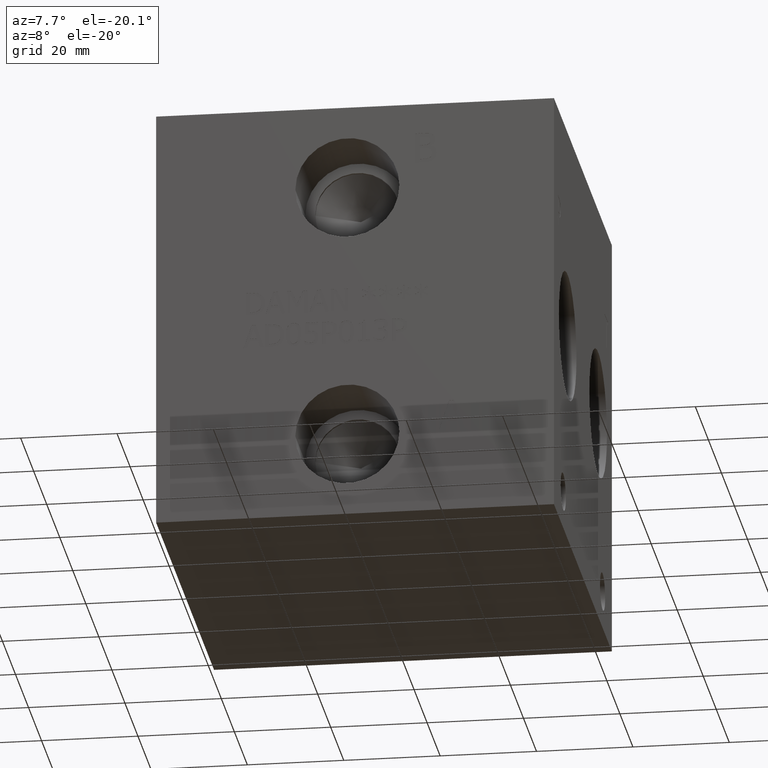
[diagram: clean part render]
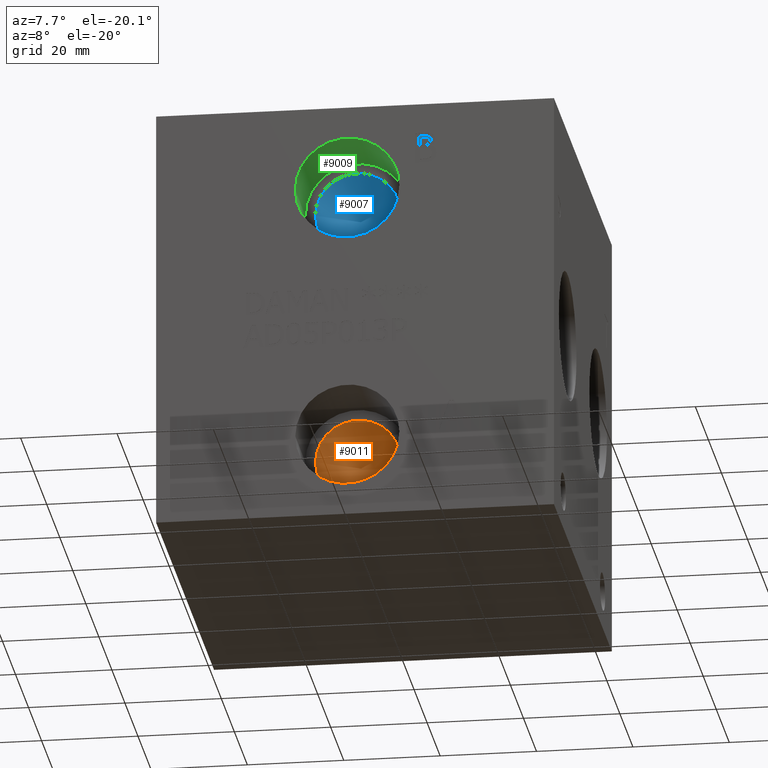
[diagram: same view with three faces highlighted in distinct colors, each labeled with its STEP entity id]
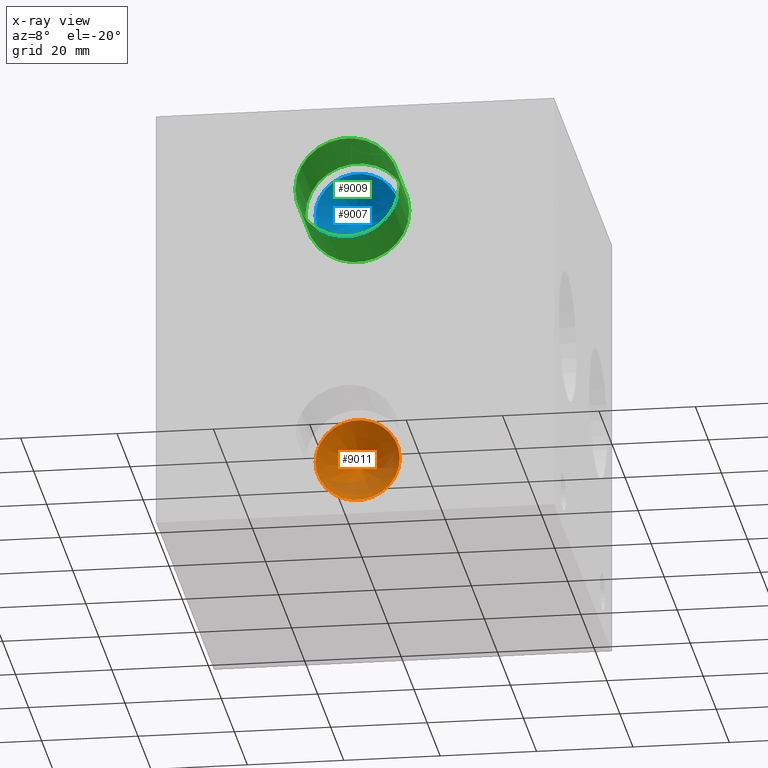
[diagram: x-ray of the same camera — body ghosted, the three highlighted faces saturated]
A machine part, auxiliary view with three faces highlighted in distinct colors.
The next image is the same camera in x-ray (body ghosted, the three faces saturated) — at least one of them is partly hidden behind the body in this view.
Their STEP definitions:

[orange] entity #9011 — the highlighted conical surface has half-angle 60 deg.
#55=CONICAL_SURFACE('',#9432,4.3688,1.0471975511966);
#129=CIRCLE('',#9433,8.7376);
#130=CIRCLE('',#9434,8.7376);
#967=FACE_OUTER_BOUND('',#1485,.T.);
#1485=EDGE_LOOP('',(#7908,#7909,#7910,#7911));
#2390=LINE('',#15241,#3273);
#3273=VECTOR('',#11125,4.3688);
#4324=VERTEX_POINT('',#15237);
#4325=VERTEX_POINT('',#15238);
#4326=VERTEX_POINT('',#15240);
#5543=EDGE_CURVE('',#4324,#4325,#129,.T.);
#5544=EDGE_CURVE('',#4325,#4326,#2390,.T.);
#5545=EDGE_CURVE('',#4325,#4324,#130,.T.);
#7908=ORIENTED_EDGE('',*,*,#5543,.T.);
#7909=ORIENTED_EDGE('',*,*,#5544,.T.);
#7910=ORIENTED_EDGE('',*,*,#5544,.F.);
#7911=ORIENTED_EDGE('',*,*,#5545,.T.);
#9011=ADVANCED_FACE('',(#967),#55,.F.);
#9432=AXIS2_PLACEMENT_3D('',#15236,#11121,#11122);
#9433=AXIS2_PLACEMENT_3D('',#15239,#11123,#11124);
#9434=AXIS2_PLACEMENT_3D('',#15242,#11126,#11127);
#11121=DIRECTION('center_axis',(0.,-1.,0.));
#11122=DIRECTION('ref_axis',(1.,0.,0.));
#11123=DIRECTION('center_axis',(0.,-1.,0.));
#11124=DIRECTION('ref_axis',(1.,0.,0.));
#11125=DIRECTION('',(0.866025403784439,0.5,1.06057523872491E-16));
#11126=DIRECTION('center_axis',(0.,-1.,0.));
#11127=DIRECTION('ref_axis',(1.,0.,0.));
#15236=CARTESIAN_POINT('Origin',(39.6748,18.3937978560356,17.4752));
#15237=CARTESIAN_POINT('',(48.4124,15.87147,17.4752));
#15238=CARTESIAN_POINT('',(30.9372,15.87147,17.4752));
#15239=CARTESIAN_POINT('Origin',(39.6748,15.87147,17.4752));
#15240=CARTESIAN_POINT('',(39.6748,20.9161257120713,17.4752));
#15241=CARTESIAN_POINT('',(35.306,18.3937978560356,17.4752));
#15242=CARTESIAN_POINT('Origin',(39.6748,15.87147,17.4752));

[blue] entity #9007 — the highlighted conical surface has half-angle 60 deg.
#54=CONICAL_SURFACE('',#9423,4.3688,1.0471975511966);
#124=CIRCLE('',#9424,8.7376);
#125=CIRCLE('',#9425,8.7376);
#963=FACE_OUTER_BOUND('',#1480,.T.);
#1480=EDGE_LOOP('',(#7890,#7891,#7892,#7893));
#2387=LINE('',#15223,#3270);
#3270=VECTOR('',#11104,4.3688);
#4318=VERTEX_POINT('',#15219);
#4319=VERTEX_POINT('',#15220);
#4320=VERTEX_POINT('',#15222);
#5535=EDGE_CURVE('',#4318,#4319,#124,.T.);
#5536=EDGE_CURVE('',#4319,#4320,#2387,.T.);
#5537=EDGE_CURVE('',#4319,#4318,#125,.T.);
#7890=ORIENTED_EDGE('',*,*,#5535,.T.);
#7891=ORIENTED_EDGE('',*,*,#5536,.T.);
#7892=ORIENTED_EDGE('',*,*,#5536,.F.);
#7893=ORIENTED_EDGE('',*,*,#5537,.T.);
#9007=ADVANCED_FACE('',(#963),#54,.F.);
#9423=AXIS2_PLACEMENT_3D('',#15218,#11100,#11101);
#9424=AXIS2_PLACEMENT_3D('',#15221,#11102,#11103);
#9425=AXIS2_PLACEMENT_3D('',#15224,#11105,#11106);
#11100=DIRECTION('center_axis',(0.,-1.,0.));
#11101=DIRECTION('ref_axis',(1.,0.,0.));
#11102=DIRECTION('center_axis',(0.,-1.,0.));
#11103=DIRECTION('ref_axis',(1.,0.,0.));
#11104=DIRECTION('',(0.866025403784439,0.5,1.06057523872491E-16));
#11105=DIRECTION('center_axis',(0.,-1.,0.));
#11106=DIRECTION('ref_axis',(1.,0.,0.));
#15218=CARTESIAN_POINT('Origin',(39.6748,18.3937978560356,71.4248));
#15219=CARTESIAN_POINT('',(48.4124,15.87147,71.4248));
#15220=CARTESIAN_POINT('',(30.9372,15.87147,71.4248));
#15221=CARTESIAN_POINT('Origin',(39.6748,15.87147,71.4248));
#15222=CARTESIAN_POINT('',(39.6748,20.9161257120713,71.4248));
#15223=CARTESIAN_POINT('',(35.306,18.3937978560356,71.4248));
#15224=CARTESIAN_POINT('Origin',(39.6748,15.87147,71.4248));

[green] entity #9009 — the highlighted cylindrical surface (bore or boss wall) has radius 10.795 mm, axis along (0, -1, 0).
#30=CYLINDRICAL_SURFACE('',#9430,10.795);
#64=CIRCLE('',#9127,10.795);
#65=CIRCLE('',#9128,10.795);
#126=CIRCLE('',#9427,10.795);
#127=CIRCLE('',#9428,10.795);
#965=FACE_OUTER_BOUND('',#1483,.T.);
#1483=EDGE_LOOP('',(#7897,#7898,#7899,#7900,#7901,#7902));
#2388=LINE('',#15233,#3271);
#3271=VECTOR('',#11117,10.795);
#3836=VERTEX_POINT('',#13272);
#3837=VERTEX_POINT('',#13273);
#4321=VERTEX_POINT('',#15226);
#4322=VERTEX_POINT('',#15227);
#4821=EDGE_CURVE('',#3836,#3837,#64,.T.);
#4822=EDGE_CURVE('',#3837,#3836,#65,.T.);
#5538=EDGE_CURVE('',#4321,#4322,#126,.T.);
#5539=EDGE_CURVE('',#4322,#4321,#127,.T.);
#5541=EDGE_CURVE('',#3837,#4322,#2388,.T.);
#7897=ORIENTED_EDGE('',*,*,#4821,.F.);
#7898=ORIENTED_EDGE('',*,*,#4822,.F.);
#7899=ORIENTED_EDGE('',*,*,#5541,.T.);
#7900=ORIENTED_EDGE('',*,*,#5538,.F.);
#7901=ORIENTED_EDGE('',*,*,#5539,.F.);
#7902=ORIENTED_EDGE('',*,*,#5541,.F.);
#9009=ADVANCED_FACE('',(#965),#30,.F.);
#9127=AXIS2_PLACEMENT_3D('',#13274,#9924,#9925);
#9128=AXIS2_PLACEMENT_3D('',#13275,#9926,#9927);
#9427=AXIS2_PLACEMENT_3D('',#15228,#11109,#11110);
#9428=AXIS2_PLACEMENT_3D('',#15229,#11111,#11112);
#9430=AXIS2_PLACEMENT_3D('',#15232,#11115,#11116);
#9924=DIRECTION('center_axis',(0.,1.,0.));
#9925=DIRECTION('ref_axis',(1.,0.,0.));
#9926=DIRECTION('center_axis',(0.,1.,0.));
#9927=DIRECTION('ref_axis',(1.,0.,0.));
#11109=DIRECTION('center_axis',(0.,-1.,0.));
#11110=DIRECTION('ref_axis',(1.,0.,0.));
#11111=DIRECTION('center_axis',(0.,-1.,0.));
#11112=DIRECTION('ref_axis',(1.,0.,0.));
#11115=DIRECTION('center_axis',(0.,-1.,0.));
#11116=DIRECTION('ref_axis',(1.,0.,0.));
#11117=DIRECTION('',(0.,1.,0.));
#13272=CARTESIAN_POINT('',(50.4698,0.,71.4248));
#13273=CARTESIAN_POINT('',(28.8798,0.,71.4248));
#13274=CARTESIAN_POINT('Origin',(39.6748,0.,71.4248));
#13275=CARTESIAN_POINT('Origin',(39.6748,0.,71.4248));
#15226=CARTESIAN_POINT('',(50.4698,15.367,71.4248));
#15227=CARTESIAN_POINT('',(28.8798,15.367,71.4248));
#15228=CARTESIAN_POINT('Origin',(39.6748,15.367,71.4248));
#15229=CARTESIAN_POINT('Origin',(39.6748,15.367,71.4248));
#15232=CARTESIAN_POINT('Origin',(39.6748,7.6835,71.4248));
#15233=CARTESIAN_POINT('',(28.8798,7.6835,71.4248));